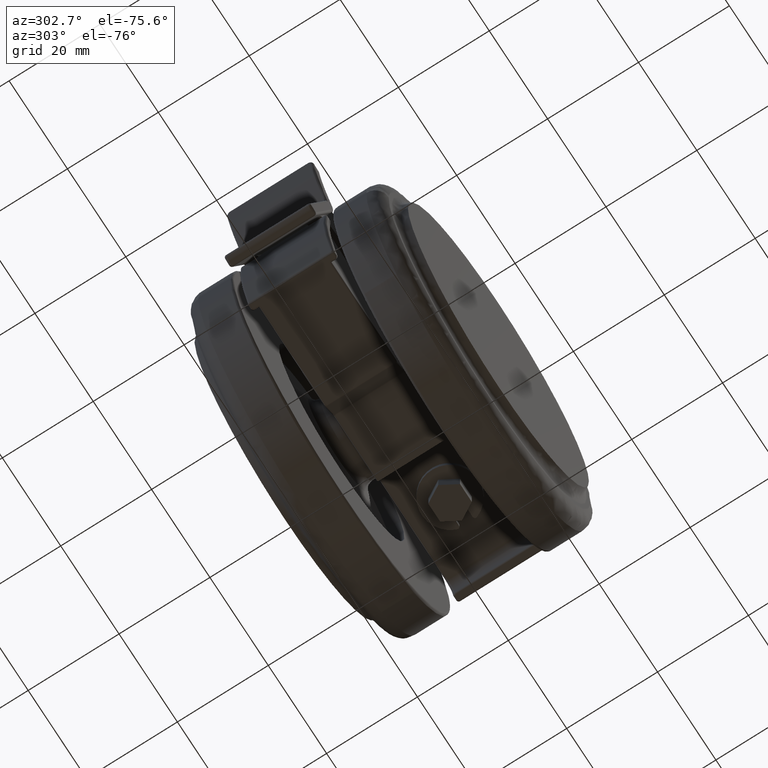
[diagram: clean part render]
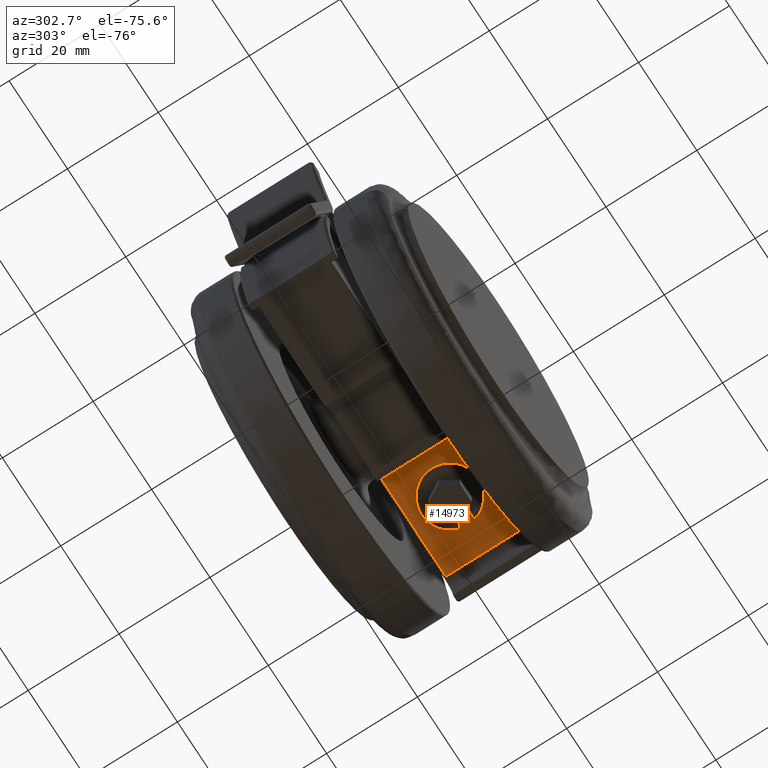
[diagram: same view with one face highlighted and labeled with its STEP entity id]
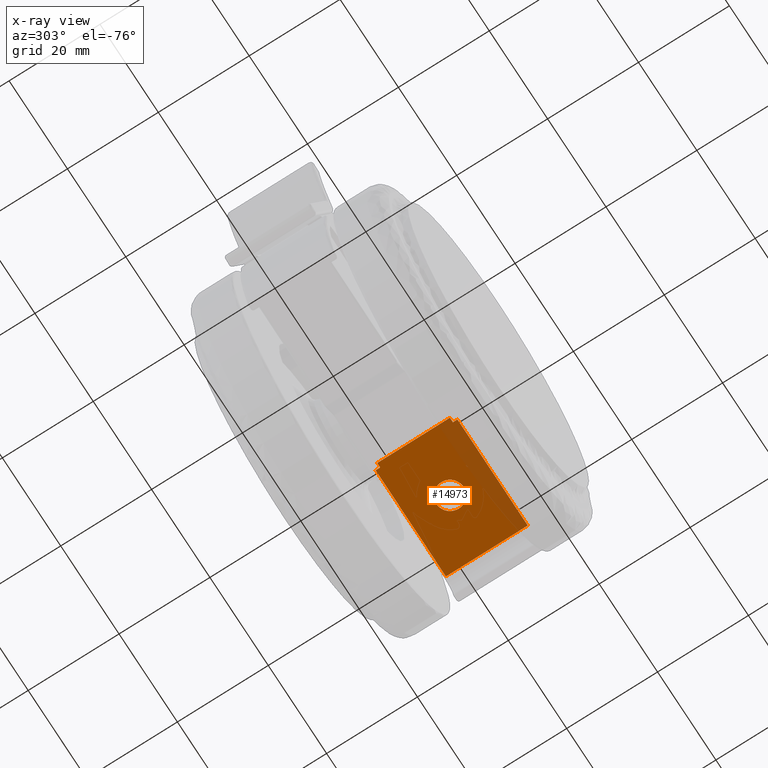
[diagram: x-ray of the same camera — body ghosted, the highlighted face saturated]
A machine part, auxiliary view. The second image highlights one B-rep face of the part: STEP entity #14973.
The next image is the same camera in x-ray: the body ghosted, the highlighted face saturated — about 18% of this face is hidden behind the body in this view.
In plain terms, the highlighted face is a freeform B-spline surface patch.
Its self-contained STEP definition (entity closure, byte-faithful):
#8813=CARTESIAN_POINT('',(-0.183145618736188,-2.994404395257522,-37.613390814203541));
#8814=VERTEX_POINT('',#8813);
#8815=CARTESIAN_POINT('',(3.0,2.842171E-014,-37.613390814203548));
#8816=VERTEX_POINT('',#8815);
#8817=CARTESIAN_POINT('',(-0.183145618736189,-2.994404395257522,-37.613390814203548));
#8818=CARTESIAN_POINT('',(-0.091658289961760,-2.999999999999971,-37.613390814203555));
#8819=CARTESIAN_POINT('',(0.0,-2.999999999999972,-37.613390814203548));
#8820=CARTESIAN_POINT('',(3.0,-2.999999999999971,-37.613390814203548));
#8821=CARTESIAN_POINT('',(3.0,2.842171E-014,-37.613390814203548));
#8829=(BOUNDED_CURVE()B_SPLINE_CURVE(2,(#8817,#8818,#8819,#8820,#8821),.UNSPECIFIED.,.F.,.U.)B_SPLINE_CURVE_WITH_KNOTS((3,2,3),(0.239332962234384,0.250000000000000,0.500000000000000),.UNSPECIFIED.)CURVE()GEOMETRIC_REPRESENTATION_ITEM()RATIONAL_B_SPLINE_CURVE((0.976072041656947,0.987502787894496,1.0,0.707106781186548,1.0))REPRESENTATION_ITEM(''));
#8830=EDGE_CURVE('',#8814,#8816,#8829,.T.);
#8839=CARTESIAN_POINT('',(0.183145618736187,2.994404395257579,-37.613390814203548));
#8840=VERTEX_POINT('',#8839);
#8846=CARTESIAN_POINT('',(3.0,2.842171E-014,-37.613390814203548));
#8847=CARTESIAN_POINT('',(3.000000000000001,2.822118200592839,-37.613390814203555));
#8848=CARTESIAN_POINT('',(0.183145618736187,2.994404395257579,-37.613390814203555));
#8856=(BOUNDED_CURVE()B_SPLINE_CURVE(2,(#8846,#8847,#8848),.UNSPECIFIED.,.F.,.U.)B_SPLINE_CURVE_WITH_KNOTS((3,3),(0.500000000000000,0.739332962234384),.UNSPECIFIED.)CURVE()GEOMETRIC_REPRESENTATION_ITEM()RATIONAL_B_SPLINE_CURVE((1.0,0.719603993292051,0.976072041656948))REPRESENTATION_ITEM(''));
#8857=EDGE_CURVE('',#8816,#8840,#8856,.T.);
#8880=CARTESIAN_POINT('',(-3.0,2.842171E-014,-37.613390814203548));
#8881=VERTEX_POINT('',#8880);
#8882=CARTESIAN_POINT('',(-3.0,2.842171E-014,-37.613390814203548));
#8883=CARTESIAN_POINT('',(-3.000000000000001,-2.822118200592780,-37.613390814203548));
#8884=CARTESIAN_POINT('',(-0.183145618736189,-2.994404395257522,-37.613390814203548));
#8892=(BOUNDED_CURVE()B_SPLINE_CURVE(2,(#8882,#8883,#8884),.UNSPECIFIED.,.F.,.U.)B_SPLINE_CURVE_WITH_KNOTS((3,3),(0.0,0.239332962234384),.UNSPECIFIED.)CURVE()GEOMETRIC_REPRESENTATION_ITEM()RATIONAL_B_SPLINE_CURVE((1.0,0.719603993292051,0.976072041656947))REPRESENTATION_ITEM(''));
#8893=EDGE_CURVE('',#8881,#8814,#8892,.T.);
#8895=CARTESIAN_POINT('',(0.183145618736187,2.994404395257579,-37.613390814203555));
#8896=CARTESIAN_POINT('',(0.091658289961759,3.000000000000029,-37.613390814203548));
#8897=CARTESIAN_POINT('',(0.0,3.000000000000029,-37.613390814203548));
#8898=CARTESIAN_POINT('',(-3.0,3.000000000000028,-37.613390814203548));
#8899=CARTESIAN_POINT('',(-3.0,2.842171E-014,-37.613390814203548));
#8907=(BOUNDED_CURVE()B_SPLINE_CURVE(2,(#8895,#8896,#8897,#8898,#8899),.UNSPECIFIED.,.F.,.U.)B_SPLINE_CURVE_WITH_KNOTS((3,2,3),(0.739332962234384,0.750000000000000,1.0),.UNSPECIFIED.)CURVE()GEOMETRIC_REPRESENTATION_ITEM()RATIONAL_B_SPLINE_CURVE((0.976072041656948,0.987502787894497,1.0,0.707106781186548,1.0))REPRESENTATION_ITEM(''));
#8908=EDGE_CURVE('',#8840,#8881,#8907,.T.);
#12050=CARTESIAN_POINT('',(-11.475477291456100,-8.0,-37.613390814203349));
#12051=VERTEX_POINT('',#12050);
#12052=CARTESIAN_POINT('',(-11.475477291456100,-8.999999999999789,-37.613390814203349));
#12053=VERTEX_POINT('',#12052);
#12054=CARTESIAN_POINT('',(-11.475477291456100,-8.0,-37.613390814203349));
#12055=CARTESIAN_POINT('',(-11.475477291456100,-8.999999999999789,-37.613390814203349));
#12056=QUASI_UNIFORM_CURVE('',1,(#12054,#12055),.UNSPECIFIED.,.F.,.U.);
#12057=EDGE_CURVE('',#12051,#12053,#12056,.T.);
#12474=CARTESIAN_POINT('',(-12.499999999999661,8.0,-37.613390814203349));
#12475=VERTEX_POINT('',#12474);
#12481=CARTESIAN_POINT('',(-12.499999999999680,-8.0,-37.613390814203349));
#12482=VERTEX_POINT('',#12481);
#12483=CARTESIAN_POINT('',(-12.499999999999661,8.0,-37.613390814203349));
#12484=CARTESIAN_POINT('',(-12.499999999999680,-8.0,-37.613390814203349));
#12485=QUASI_UNIFORM_CURVE('',1,(#12483,#12484),.UNSPECIFIED.,.F.,.U.);
#12486=EDGE_CURVE('',#12475,#12482,#12485,.T.);
#12571=CARTESIAN_POINT('',(12.613290798722700,9.000000000000231,-37.613390814203349));
#12572=VERTEX_POINT('',#12571);
#12617=CARTESIAN_POINT('',(-11.475477291456080,9.000000000000231,-37.613390814203349));
#12618=VERTEX_POINT('',#12617);
#12644=CARTESIAN_POINT('',(-11.475477291456080,9.000000000000231,-37.613390814203349));
#12645=CARTESIAN_POINT('',(12.613290798722700,9.000000000000231,-37.613390814203349));
#12646=QUASI_UNIFORM_CURVE('',1,(#12644,#12645),.UNSPECIFIED.,.F.,.U.);
#12647=EDGE_CURVE('',#12618,#12572,#12646,.T.);
#12792=CARTESIAN_POINT('',(12.613290798722700,-8.999999999999789,-37.613390814203349));
#12793=VERTEX_POINT('',#12792);
#12840=CARTESIAN_POINT('',(12.613290798722700,-8.999999999999789,-37.613390814203349));
#12841=CARTESIAN_POINT('',(-11.475477291456100,-8.999999999999789,-37.613390814203349));
#12842=QUASI_UNIFORM_CURVE('',1,(#12840,#12841),.UNSPECIFIED.,.F.,.U.);
#12843=EDGE_CURVE('',#12793,#12053,#12842,.T.);
#14599=CARTESIAN_POINT('',(-11.475477291456080,8.0,-37.613390814203349));
#14600=VERTEX_POINT('',#14599);
#14618=CARTESIAN_POINT('',(-11.475477291456080,8.0,-37.613390814203349));
#14619=CARTESIAN_POINT('',(-12.499999999999661,8.0,-37.613390814203349));
#14620=QUASI_UNIFORM_CURVE('',1,(#14618,#14619),.UNSPECIFIED.,.F.,.U.);
#14621=EDGE_CURVE('',#14600,#12475,#14620,.T.);
#14642=CARTESIAN_POINT('',(-11.475477291456080,8.0,-37.613390814203349));
#14643=CARTESIAN_POINT('',(-11.475477291456080,9.000000000000231,-37.613390814203349));
#14644=QUASI_UNIFORM_CURVE('',1,(#14642,#14643),.UNSPECIFIED.,.F.,.U.);
#14645=EDGE_CURVE('',#14600,#12618,#14644,.T.);
#14937=CARTESIAN_POINT('',(12.613290798722700,9.000000000000231,-37.613390814203349));
#14938=CARTESIAN_POINT('',(12.613290798722700,-8.999999999999789,-37.613390814203349));
#14939=QUASI_UNIFORM_CURVE('',1,(#14937,#14938),.UNSPECIFIED.,.F.,.U.);
#14940=EDGE_CURVE('',#12572,#12793,#14939,.T.);
#14948=CARTESIAN_POINT('',(13.867699625444450,-9.899099965112299,-37.613390814203349));
#14949=CARTESIAN_POINT('',(-13.754409500312381,-9.899099965112299,-37.613390814203349));
#14950=CARTESIAN_POINT('',(13.867699625444450,9.899100447910360,-37.613390814203349));
#14951=CARTESIAN_POINT('',(-13.754409500312381,9.899100447910358,-37.613390814203349));
#14952=B_SPLINE_SURFACE_WITH_KNOTS('',1,1,((#14948,#14950),(#14949,#14951)),.UNSPECIFIED.,.F.,.F.,.U.,(2,2),(2,2),(0.0,27.622109125756840),(0.0,19.798200413022659),.UNSPECIFIED.);
#14953=ORIENTED_EDGE('',*,*,#14645,.T.);
#14954=ORIENTED_EDGE('',*,*,#12647,.T.);
#14955=ORIENTED_EDGE('',*,*,#14940,.T.);
#14956=ORIENTED_EDGE('',*,*,#12843,.T.);
#14957=ORIENTED_EDGE('',*,*,#12057,.F.);
#14958=CARTESIAN_POINT('',(-11.475477291456100,-8.0,-37.613390814203349));
#14959=CARTESIAN_POINT('',(-12.499999999999680,-8.0,-37.613390814203349));
#14960=QUASI_UNIFORM_CURVE('',1,(#14958,#14959),.UNSPECIFIED.,.F.,.U.);
#14961=EDGE_CURVE('',#12051,#12482,#14960,.T.);
#14962=ORIENTED_EDGE('',*,*,#14961,.T.);
#14963=ORIENTED_EDGE('',*,*,#12486,.F.);
#14964=ORIENTED_EDGE('',*,*,#14621,.F.);
#14965=EDGE_LOOP('',(#14953,#14954,#14955,#14956,#14957,#14962,#14963,#14964));
#14966=FACE_OUTER_BOUND('',#14965,.T.);
#14967=ORIENTED_EDGE('',*,*,#8857,.T.);
#14968=ORIENTED_EDGE('',*,*,#8908,.T.);
#14969=ORIENTED_EDGE('',*,*,#8893,.T.);
#14970=ORIENTED_EDGE('',*,*,#8830,.T.);
#14971=EDGE_LOOP('',(#14967,#14968,#14969,#14970));
#14972=FACE_BOUND('',#14971,.T.);
#14973=ADVANCED_FACE('',(#14966,#14972),#14952,.T.);